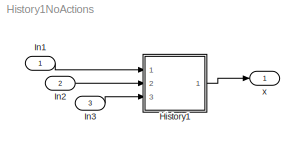
MODEL History1NoActions
KIND model
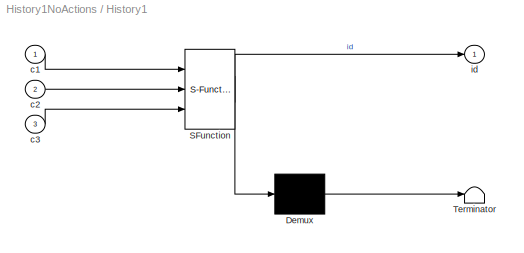
BLOCK [SubSystem] History1
  ErrorFcn = Stateflow.Translate.translate
  PermitHierarchicalResolution = ExplicitOnly
  Ports = [3, 1]
  RequestExecContextInheritance = off
  SFBlockType = Chart
  SID = 1
  TreatAsAtomicUnit = on
  Variant = off
BLOCK [Demux] History1/ Demux 
  Outputs = 1
  Ports = [1, 1]
  SID = 1::13
BLOCK [S-Function] History1/ SFunction 
  EnableBusSupport = on
  FunctionName = sf_sfun
  PortCounts = [3 2]
  Ports = [3, 2]
  SFcnIsStateOwnerBlock = off
  SFunctionDeploymentMode = off
  SID = 1::12
  Tag = Stateflow S-Function History1NoActions 1
BLOCK [Terminator] History1/ Terminator 
  SID = 1::14
BLOCK [Inport] History1/c1
  IconDisplay = Port number
  SID = 1::15
BLOCK [Inport] History1/c2
  IconDisplay = Port number
  Port = 2
  SID = 1::16
BLOCK [Inport] History1/c3
  IconDisplay = Port number
  Port = 3
  SID = 1::17
BLOCK [Outport] History1/id
  IconDisplay = Port number
  SID = 1::18
BLOCK [Inport] In1
  IconDisplay = Port number
  OutDataTypeStr = boolean
  SID = 6
BLOCK [Inport] In2
  IconDisplay = Port number
  OutDataTypeStr = boolean
  Port = 2
  SID = 7
BLOCK [Inport] In3
  IconDisplay = Port number
  OutDataTypeStr = boolean
  Port = 3
  SID = 8
BLOCK [Outport] x
  IconDisplay = Port number
  SID = 5
LINE History1/ Demux :1 -> History1/ Terminator :1
LINE History1/ SFunction :1 -> History1/ Demux :1
LINE History1/ SFunction :2 -> History1/id:1
LINE History1/c1:1 -> History1/ SFunction :1
LINE History1/c2:1 -> History1/ SFunction :2
LINE History1/c3:1 -> History1/ SFunction :3
LINE History1:1 -> x:1
LINE In1:1 -> History1:1
LINE In2:1 -> History1:2
LINE In3:1 -> History1:3
CHART History1 states=6 transitions=9
  STATE_LABEL 'A'
  STATE_LABEL 'A1/\\nen: id=1;'
  STATE_LABEL 'A2/\\nen: id=2;'
  STATE_LABEL 'B'
  STATE_LABEL 'B1/\\nen: id=3;'
  STATE_LABEL 'B2/\\nen: id=4;'
